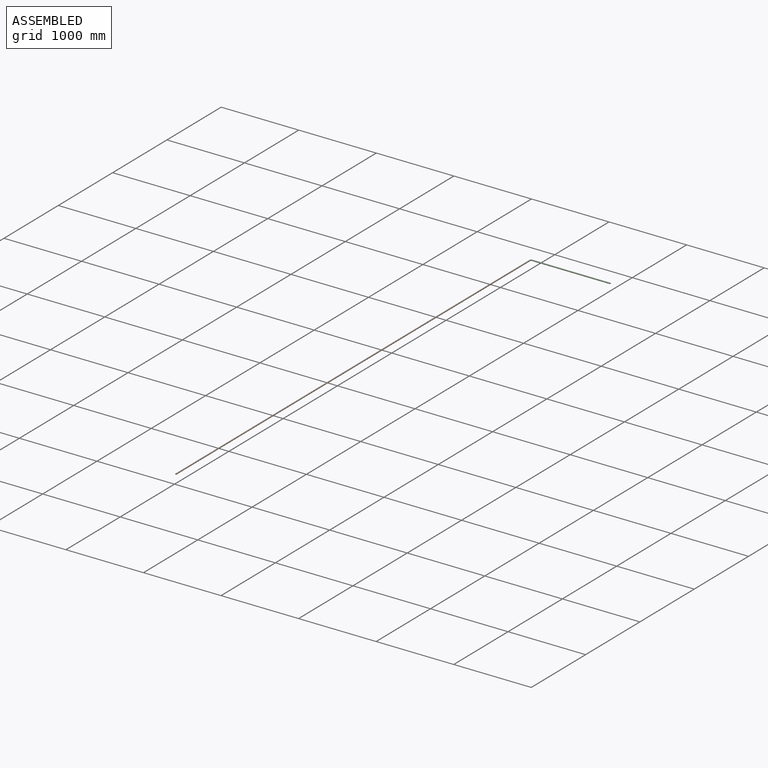
[diagram: assembled view]
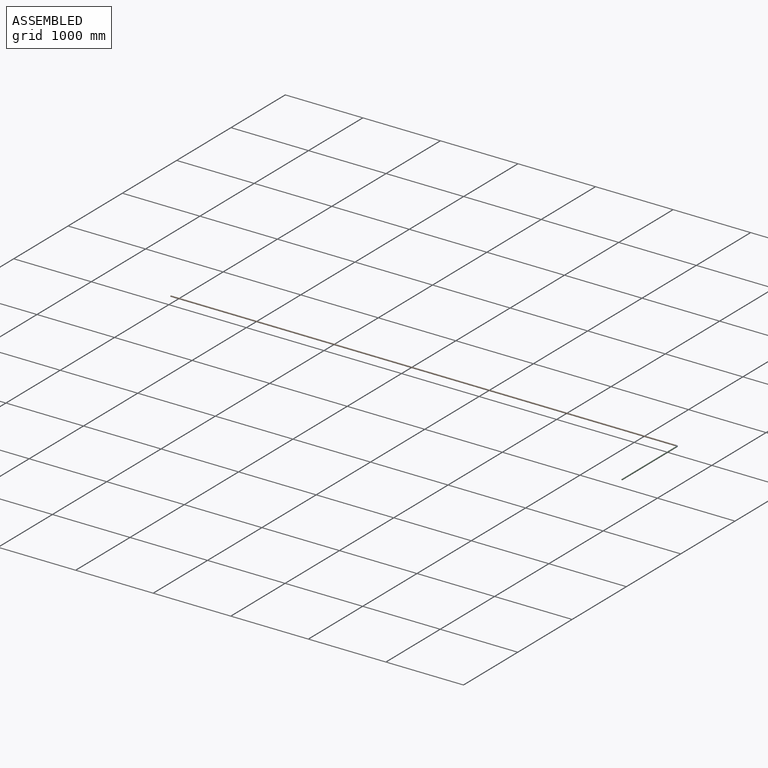
[diagram: assembled view, second angle]
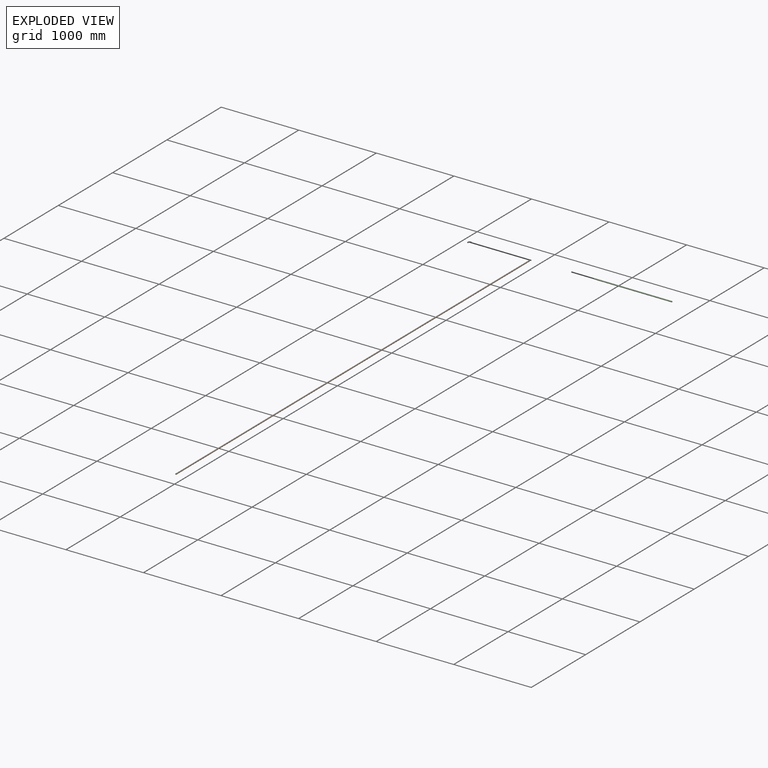
[diagram: exploded view]
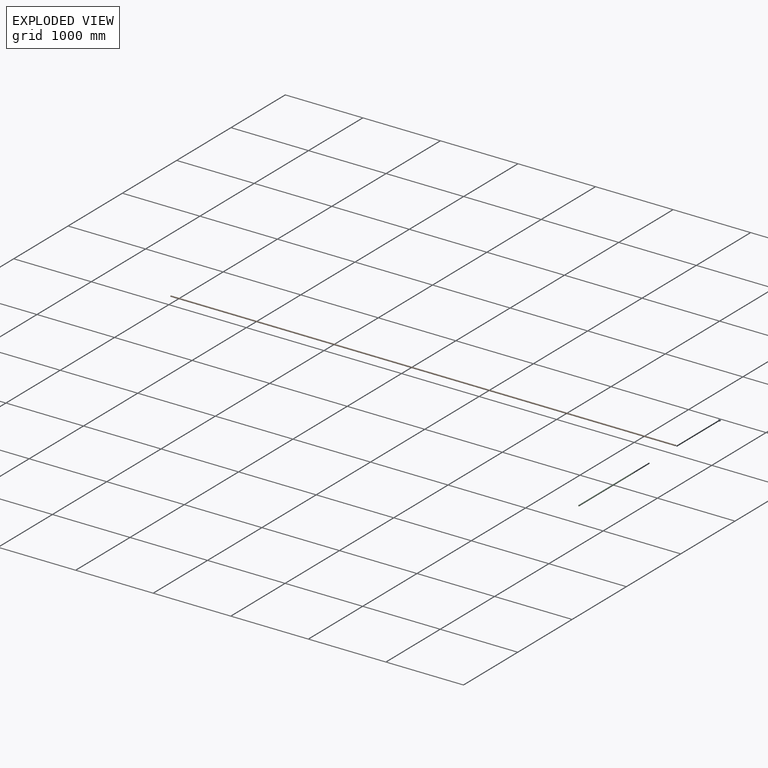
[diagram: exploded view, second angle]
ASSEMBLY  parts=3 mates=2
PART A: 5 faces, bbox 34.4x34.4x15 mm
  f0: plane 15x15mm, normal (0,-1,0), area 176.7mm2, adj f2
  f1: plane 15x15mm, normal (1,0,0), area 176.7mm2, adj f4
  f2: cylinder r=7.5mm len=15mm, axis (0,1,0), area 471.2mm2, adj f0,f3
  f3: torus R=15mm, axis (0,0,-1), area 1110.3mm2, adj f2,f4
  f4: cylinder r=7.5mm len=15mm, axis (1,0,0), area 471.2mm2, adj f1,f3
PART B: 3 faces, bbox 15x6510x15 mm
  f0: cylinder r=7.5mm len=6510mm, axis (0,1,0), area 306776.5mm2, adj f1,f2
  f1: plane 15x15mm, normal (0,-1,0), area 176.7mm2, adj f0
  f2: plane 15x15mm, normal (0,1,0), area 176.7mm2, adj f0
PART C: 3 faces, bbox 15x1000x15 mm
  f0: cylinder r=7.5mm len=1000mm, axis (0,1,0), area 47123.9mm2, adj f1,f2
  f1: plane 15x15mm, normal (0,-1,0), area 176.7mm2, adj f0
  f2: plane 15x15mm, normal (0,1,0), area 176.7mm2, adj f0
PLACE A t=(0,6535,-1525)mm
PLACE B t=(11.43,6535,-1561.59)mm
PLACE C rot(axis=(0.58,0.58,-0.58),120deg) t=(1025,6596.59,-1511.43)mm
MATE fastened C.f0 <-> A.f4  axis (-1,0,0) through (25,6560,-1525)mm
MATE fastened A.f2 <-> B.f0  axis (0,-1,0) through (0,6535,-1525)mm
